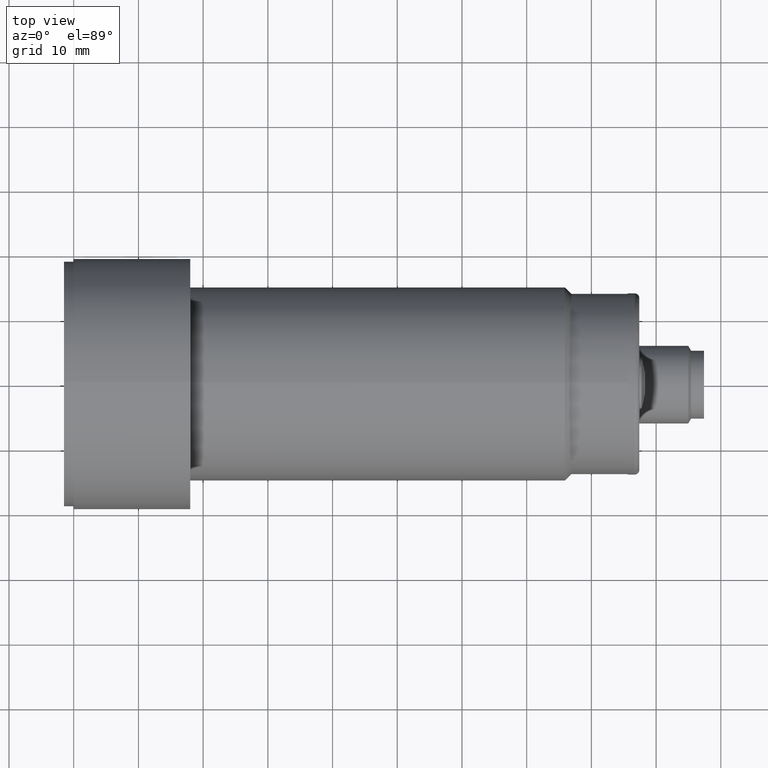
[diagram: clean part render]
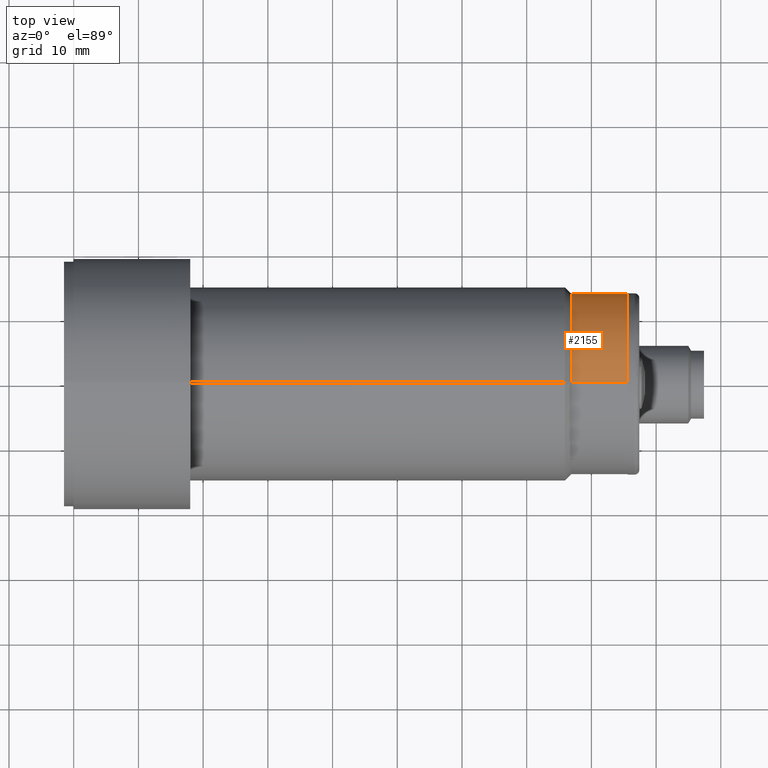
[diagram: same view with one face highlighted and labeled with its STEP entity id]
A machine part, top view. The second image highlights one B-rep face of the part: STEP entity #2155.
In plain terms, the highlighted cylindrical surface (partial cylindrical patch) has radius 14 mm, axis along (1, -0, -0).
Its self-contained STEP definition (entity closure, byte-faithful):
#21 = CARTESIAN_POINT ( 'NONE',  ( 3.027559055118110600, 6.750021727583840400E-017, 0.5511811023622045200 ) ) ;
#301 = VERTEX_POINT ( 'NONE', #1765 ) ;
#497 = CYLINDRICAL_SURFACE ( 'NONE', #1827, 0.5511811023622047400 ) ;
#498 = CARTESIAN_POINT ( 'NONE',  ( 4.031496062992125900, 6.750021727583836700E-017, 0.5511811023622041900 ) ) ;
#559 = DIRECTION ( 'NONE',  ( -1.000000000000000000, 0.0000000000000000000, 1.524659305057740100E-016 ) ) ;
#827 = DIRECTION ( 'NONE',  ( 0.0000000000000000000, 0.0000000000000000000, 1.000000000000000000 ) ) ;
#930 = CARTESIAN_POINT ( 'NONE',  ( 3.370078740157480100, 0.0000000000000000000, -5.138221909958344700E-016 ) ) ;
#978 = EDGE_CURVE ( 'NONE', #1501, #2454, #3082, .T. ) ;
#1027 = VERTEX_POINT ( 'NONE', #3678 ) ;
#1270 = DIRECTION ( 'NONE',  ( 1.000000000000000000, -0.0000000000000000000, -1.524659305057740100E-016 ) ) ;
#1501 = VERTEX_POINT ( 'NONE', #21 ) ;
#1541 = CARTESIAN_POINT ( 'NONE',  ( 3.027559055118110600, 0.0000000000000000000, -4.615996084997627900E-016 ) ) ;
#1570 = DIRECTION ( 'NONE',  ( -1.000000000000000000, 0.0000000000000000000, 1.524659305057740100E-016 ) ) ;
#1765 = CARTESIAN_POINT ( 'NONE',  ( 3.370078740157480100, 0.0000000000000000000, -0.5511811023622053000 ) ) ;
#1802 = EDGE_CURVE ( 'NONE', #2454, #301, #3486, .T. ) ;
#1827 = AXIS2_PLACEMENT_3D ( 'NONE', #2953, #4487, #4558 ) ;
#1975 = CARTESIAN_POINT ( 'NONE',  ( 3.370078740157480100, 6.750021727583836700E-017, 0.5511811023622041900 ) ) ;
#2028 = VECTOR ( 'NONE', #1270, 39.37007874015748100 ) ;
#2113 = FACE_OUTER_BOUND ( 'NONE', #2480, .T. ) ;
#2155 = ADVANCED_FACE ( 'NONE', ( #2113 ), #497, .T. ) ;
#2454 = VERTEX_POINT ( 'NONE', #1975 ) ;
#2480 = EDGE_LOOP ( 'NONE', ( #2913, #2667, #3134, #4899 ) ) ;
#2667 = ORIENTED_EDGE ( 'NONE', *, *, #978, .T. ) ;
#2902 = CARTESIAN_POINT ( 'NONE',  ( 4.031496062992125900, 0.0000000000000000000, -0.5511811023622054100 ) ) ;
#2913 = ORIENTED_EDGE ( 'NONE', *, *, #4382, .F. ) ;
#2953 = CARTESIAN_POINT ( 'NONE',  ( 4.031496062992125900, 0.0000000000000000000, -6.146657985744568100E-016 ) ) ;
#3082 = LINE ( 'NONE', #498, #2028 ) ;
#3134 = ORIENTED_EDGE ( 'NONE', *, *, #1802, .T. ) ;
#3439 = AXIS2_PLACEMENT_3D ( 'NONE', #1541, #1570, #827 ) ;
#3486 = CIRCLE ( 'NONE', #4771, 0.5511811023622047400 ) ;
#3651 = DIRECTION ( 'NONE',  ( 0.0000000000000000000, 0.0000000000000000000, -1.000000000000000000 ) ) ;
#3667 = VECTOR ( 'NONE', #4059, 39.37007874015748100 ) ;
#3678 = CARTESIAN_POINT ( 'NONE',  ( 3.027559055118110600, 0.0000000000000000000, -0.5511811023622055200 ) ) ;
#3793 = CIRCLE ( 'NONE', #3439, 0.5511811023622049700 ) ;
#4034 = LINE ( 'NONE', #2902, #3667 ) ;
#4059 = DIRECTION ( 'NONE',  ( 1.000000000000000000, -0.0000000000000000000, -1.524659305057740100E-016 ) ) ;
#4079 = EDGE_CURVE ( 'NONE', #1027, #301, #4034, .T. ) ;
#4382 = EDGE_CURVE ( 'NONE', #1501, #1027, #3793, .T. ) ;
#4487 = DIRECTION ( 'NONE',  ( 1.000000000000000000, -0.0000000000000000000, -1.524659305057740100E-016 ) ) ;
#4558 = DIRECTION ( 'NONE',  ( 0.0000000000000000000, 0.0000000000000000000, -1.000000000000000000 ) ) ;
#4771 = AXIS2_PLACEMENT_3D ( 'NONE', #930, #559, #3651 ) ;
#4899 = ORIENTED_EDGE ( 'NONE', *, *, #4079, .F. ) ;